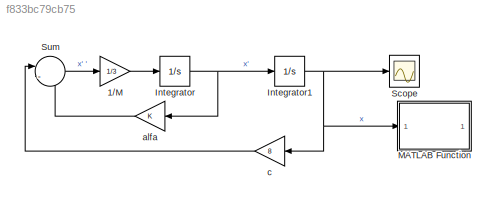
MODEL slx_f833bc79cb75
KIND model
CONFIG AbsTol = auto
CONFIG EnableMultiTasking = off
CONFIG FixedStep = auto
CONFIG MaxStep = 0.1
CONFIG MinStep = auto
CONFIG RelTol = 1e-3
CONFIG SampleTimeConstraint = Unconstrained
CONFIG SolverName = VariableStepAuto
CONFIG StartTime = 0.0
CONFIG StopTime = 25
BLOCK [Gain] 1//M
  Gain = 1/3
BLOCK [Integrator] Integrator
  InitialCondition = 2
BLOCK [Integrator] Integrator1
  InitialCondition = 1
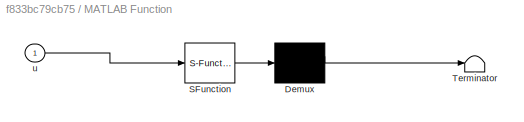
BLOCK [SubSystem] MATLAB Function
  ErrorFcn = Stateflow.Translate.translate
  PermitHierarchicalResolution = ExplicitOnly
  SFBlockType = MATLAB Function
  TreatAsAtomicUnit = on
BLOCK [Demux] MATLAB Function/ Demux 
  Outputs = 1
BLOCK [S-Function] MATLAB Function/ SFunction 
  EnableBusSupport = on
  FunctionName = sf_sfun
  PortCounts = [1 1]
  SFcnIsStateOwnerBlock = off
  SFunctionDeploymentMode = off
  Tag = Stateflow S-Function 2
BLOCK [Terminator] MATLAB Function/ Terminator 
BLOCK [Inport] MATLAB Function/u
BLOCK [Scope] Scope
  Floating = off
  NumInputPorts = 1
  ScopeSpecificationString = Simulink.scopes.TimeScopeBlockCfg('CurrentConfiguration', extmgr.ConfigurationSet(extmgr.Configuration('Core','General UI',true),extmgr.Configuration('Core','Source UI',true),extmgr.Configuration('Sources','WiredSimulink',true),extmgr.Configuration('Visuals','Time Domain',true,'SerializedDisplays',{struct('MinYLimReal','0.82881','MaxYLimReal','1.60076','YLabelReal','','MinYLimMag','0.82881','MaxYL...<+1408ch>
BLOCK [Sum] Sum
  Inputs = |--
BLOCK [Gain] alfa
BLOCK [Gain] c
  Gain = 8
LINE 1//M:1 -> Integrator:1
NET Integrator1:1 -> MATLAB Function:1, Scope:1, c:1
NET Integrator:1 -> Integrator1:1, alfa:1
LINE Sum:1 -> 1//M:1
LINE alfa:1 -> Sum:2
LINE c:1 -> Sum:1
note: NET lines group one-source signal fan-out (src -> all destinations, sorted); 1:1 wires keep LINE
CHART MATLAB Function states=1 transitions=1
  STATE_LABEL 'eML_blk_kernel()'
  STATE_LABEL "SCRIPT:\nfunction rysujOscylator(u)\n\nposition = u(1);\n\ncla\nhold on;\nfill([-2,-2,2,2], [2,1.9,1.9,2], 'b')\nplot(0, position, 'rs', 'MarkerSize', 60, 'MarkerFaceColor', 'r')\nxlim([-2 2])\nylim([-2 2])\n\nspringWidth = 0.05; % Szerokość sprężyny\nspringColor = [0.8 0.8 0.8]; % Kolor sprężyny\nspringY = linspace(1.95, position, 11); % Początek od sufitu\n% Rysowanie sprężyny jako wielu segmentów linii\nfor i ...<+242ch>"
CHART  states=0 transitions=0
